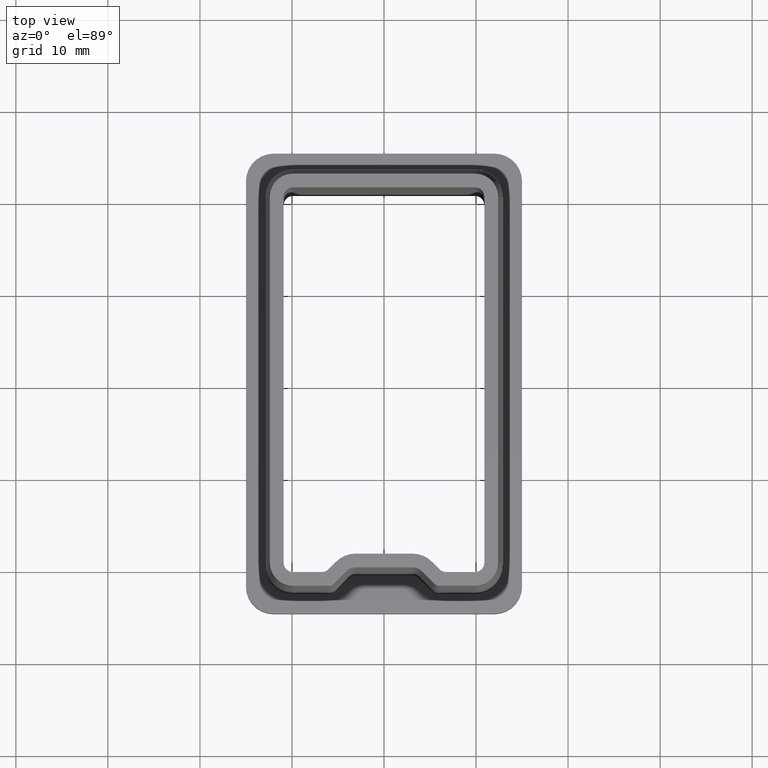
[diagram: clean part render]
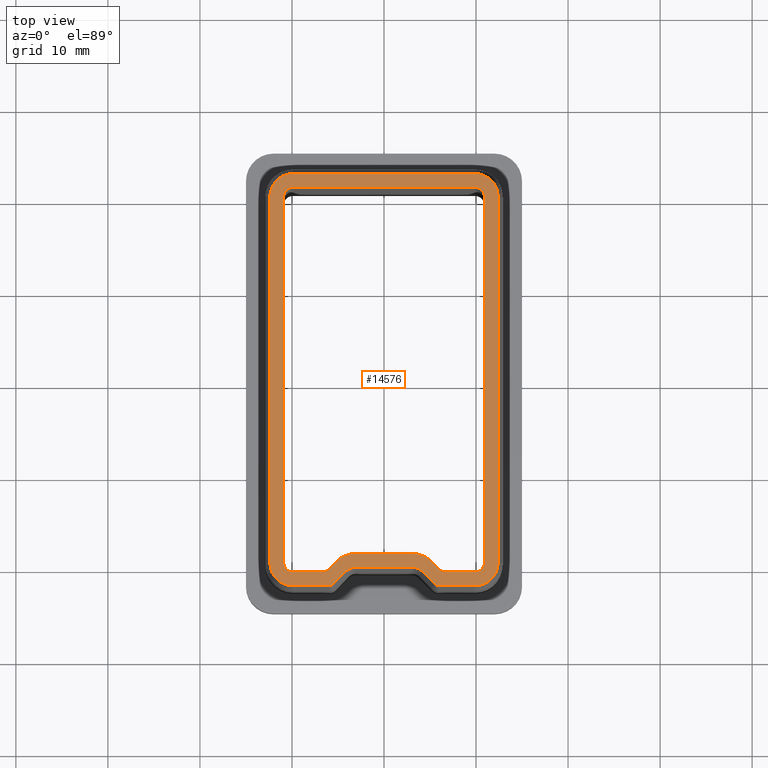
[diagram: same view with one face highlighted and labeled with its STEP entity id]
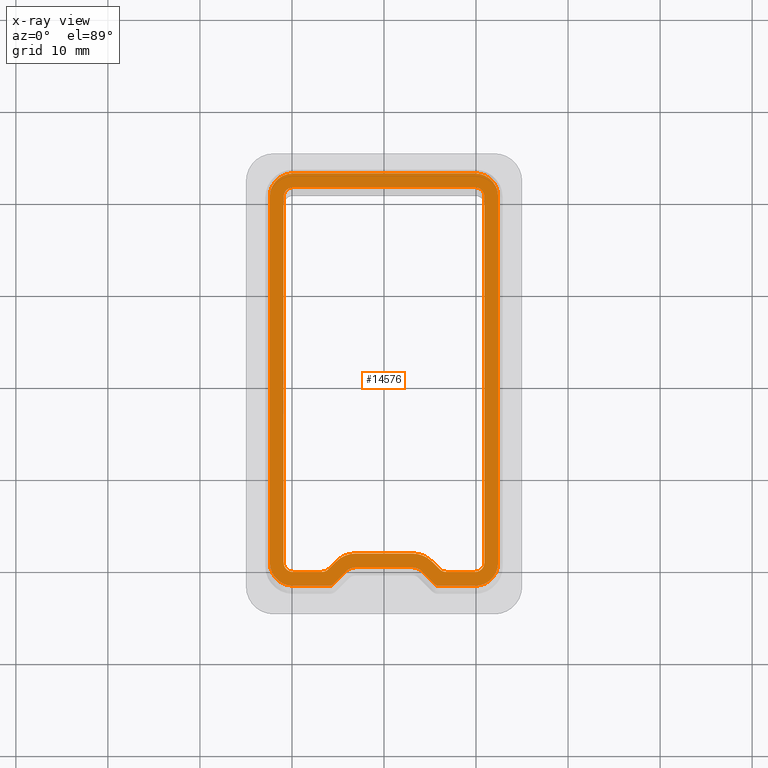
[diagram: x-ray of the same camera — body ghosted, the highlighted face saturated]
A machine part, top view. The second image highlights one B-rep face of the part: STEP entity #14576.
The next image is the same camera in x-ray: the body ghosted, the highlighted face saturated — about 0% of this face is hidden behind the body in this view.
In plain terms, the highlighted planar face has unit normal (0, 0, -1).
Its self-contained STEP definition (entity closure, byte-faithful):
#158 = EDGE_CURVE ( 'NONE', #12493, #13998, #18809, .T. ) ;
#183 = AXIS2_PLACEMENT_3D ( 'NONE', #11297, #15617, #19741 ) ;
#214 = ORIENTED_EDGE ( 'NONE', *, *, #13771, .F. ) ;
#325 = VERTEX_POINT ( 'NONE', #15586 ) ;
#328 = ORIENTED_EDGE ( 'NONE', *, *, #158, .F. ) ;
#495 = AXIS2_PLACEMENT_3D ( 'NONE', #12702, #17212, #16958 ) ;
#691 = CARTESIAN_POINT ( 'NONE',  ( -4.146446609406740300, -20.83933982822019000, 26.99999999999999600 ) ) ;
#701 = CARTESIAN_POINT ( 'NONE',  ( -5.560660171779821900, -22.25355339059327500, 26.99999999999999600 ) ) ;
#717 = LINE ( 'NONE', #5280, #12430 ) ;
#1131 = VECTOR ( 'NONE', #5666, 1000.000000000000000 ) ;
#1184 = CIRCLE ( 'NONE', #4144, 3.000000000000000900 ) ;
#1299 = AXIS2_PLACEMENT_3D ( 'NONE', #10629, #6348, #6155 ) ;
#1342 = CARTESIAN_POINT ( 'NONE',  ( 9.899999999999991500, 19.90000000000000600, 27.00000000000000000 ) ) ;
#1357 = CARTESIAN_POINT ( 'NONE',  ( 9.899999999999991500, 20.90000000000000200, 27.00000000000000000 ) ) ;
#1358 = DIRECTION ( 'NONE',  ( -0.0000000000000000000, -0.0000000000000000000, -1.000000000000000000 ) ) ;
#1419 = LINE ( 'NONE', #3696, #1131 ) ;
#1487 = EDGE_CURVE ( 'NONE', #9550, #11956, #19447, .T. ) ;
#1504 = VERTEX_POINT ( 'NONE', #10001 ) ;
#1533 = CARTESIAN_POINT ( 'NONE',  ( 3.085786437626914000, -20.40000000000000600, 26.99999999999999600 ) ) ;
#1550 = ORIENTED_EDGE ( 'NONE', *, *, #15344, .F. ) ;
#1628 = VERTEX_POINT ( 'NONE', #10887 ) ;
#1669 = AXIS2_PLACEMENT_3D ( 'NONE', #5098, #7208, #26068 ) ;
#1745 = DIRECTION ( 'NONE',  ( -0.0000000000000000000, -0.0000000000000000000, -1.000000000000000000 ) ) ;
#1760 = CARTESIAN_POINT ( 'NONE',  ( -4.146446609406740300, -20.83933982822019000, 26.99999999999999600 ) ) ;
#1804 = AXIS2_PLACEMENT_3D ( 'NONE', #20352, #16338, #1820 ) ;
#1820 = DIRECTION ( 'NONE',  ( -1.000000000000000000, 0.0000000000000000000, 0.0000000000000000000 ) ) ;
#1948 = VERTEX_POINT ( 'NONE', #691 ) ;
#1973 = EDGE_CURVE ( 'NONE', #5263, #15943, #13579, .T. ) ;
#2258 = DIRECTION ( 'NONE',  ( -1.000000000000000000, -8.704548039004547000E-016, 0.0000000000000000000 ) ) ;
#2730 = DIRECTION ( 'NONE',  ( 0.0000000000000000000, 0.0000000000000000000, 1.000000000000000000 ) ) ;
#2733 = EDGE_CURVE ( 'NONE', #8460, #23140, #18067, .T. ) ;
#2933 = LINE ( 'NONE', #3893, #14624 ) ;
#2968 = CARTESIAN_POINT ( 'NONE',  ( 9.899999999999991500, 19.90000000000000600, 26.99999999999999600 ) ) ;
#3186 = VECTOR ( 'NONE', #20471, 1000.000000000000000 ) ;
#3236 = LINE ( 'NONE', #18354, #4830 ) ;
#3282 = VECTOR ( 'NONE', #3553, 1000.000000000000000 ) ;
#3335 = ORIENTED_EDGE ( 'NONE', *, *, #17504, .F. ) ;
#3343 = VERTEX_POINT ( 'NONE', #6074 ) ;
#3369 = DIRECTION ( 'NONE',  ( -1.000000000000000000, 0.0000000000000000000, 0.0000000000000000000 ) ) ;
#3389 = VECTOR ( 'NONE', #7627, 1000.000000000000000 ) ;
#3415 = EDGE_CURVE ( 'NONE', #13916, #5263, #19716, .T. ) ;
#3511 = CARTESIAN_POINT ( 'NONE',  ( 5.914213562373093100, -22.39999999999999900, 26.99999999999999600 ) ) ;
#3540 = CARTESIAN_POINT ( 'NONE',  ( 9.899999999999991500, 22.40000000000000200, 26.99999999999999600 ) ) ;
#3553 = DIRECTION ( 'NONE',  ( 0.7071067811865466800, -0.7071067811865483500, 0.0000000000000000000 ) ) ;
#3604 = EDGE_CURVE ( 'NONE', #7598, #17834, #19051, .T. ) ;
#3649 = DIRECTION ( 'NONE',  ( -4.358601698434188300E-017, 1.000000000000000000, 0.0000000000000000000 ) ) ;
#3696 = CARTESIAN_POINT ( 'NONE',  ( -10.89999999999999300, 19.90000000000000200, 27.00000000000000000 ) ) ;
#3731 = DIRECTION ( 'NONE',  ( -1.000000000000000000, 8.704548039004539200E-016, 0.0000000000000000000 ) ) ;
#3759 = VECTOR ( 'NONE', #9800, 1000.000000000000000 ) ;
#3893 = CARTESIAN_POINT ( 'NONE',  ( -9.899999999999991500, 22.39999999999998800, 26.99999999999999600 ) ) ;
#3909 = ORIENTED_EDGE ( 'NONE', *, *, #22711, .F. ) ;
#3974 = EDGE_CURVE ( 'NONE', #19835, #13417, #12249, .T. ) ;
#4023 = DIRECTION ( 'NONE',  ( -1.000000000000000000, 0.0000000000000000000, 0.0000000000000000000 ) ) ;
#4043 = VERTEX_POINT ( 'NONE', #13921 ) ;
#4144 = AXIS2_PLACEMENT_3D ( 'NONE', #5689, #1358, #24470 ) ;
#4468 = LINE ( 'NONE', #1760, #3186 ) ;
#4634 = EDGE_CURVE ( 'NONE', #13417, #14643, #12879, .T. ) ;
#4712 = EDGE_CURVE ( 'NONE', #22067, #3343, #10609, .T. ) ;
#4830 = VECTOR ( 'NONE', #3731, 1000.000000000000000 ) ;
#4856 = AXIS2_PLACEMENT_3D ( 'NONE', #12579, #1745, #4023 ) ;
#4905 = VECTOR ( 'NONE', #8574, 1000.000000000000000 ) ;
#4909 = CARTESIAN_POINT ( 'NONE',  ( -12.39999999999998400, 19.90000000000000200, 26.99999999999999600 ) ) ;
#4915 = VERTEX_POINT ( 'NONE', #23511 ) ;
#4919 = CARTESIAN_POINT ( 'NONE',  ( -3.085786437626907300, -18.90000000000001300, 27.00000000000000000 ) ) ;
#4943 = ORIENTED_EDGE ( 'NONE', *, *, #15085, .F. ) ;
#5098 = CARTESIAN_POINT ( 'NONE',  ( -3.085786437626913100, -21.90000000000000900, 26.99999999999999600 ) ) ;
#5263 = VERTEX_POINT ( 'NONE', #4909 ) ;
#5280 = CARTESIAN_POINT ( 'NONE',  ( 12.39999999999999000, 19.90000000000000200, 26.99999999999999600 ) ) ;
#5311 = CARTESIAN_POINT ( 'NONE',  ( -6.742640687119283000, -20.90000000000000900, 27.00000000000000000 ) ) ;
#5328 = DIRECTION ( 'NONE',  ( 0.0000000000000000000, 0.0000000000000000000, -1.000000000000000000 ) ) ;
#5463 = DIRECTION ( 'NONE',  ( 1.000000000000000000, 0.0000000000000000000, 0.0000000000000000000 ) ) ;
#5472 = DIRECTION ( 'NONE',  ( -0.0000000000000000000, -0.0000000000000000000, -1.000000000000000000 ) ) ;
#5499 = CARTESIAN_POINT ( 'NONE',  ( -6.328427124746187200, -20.90000000000000900, 27.00000000000000000 ) ) ;
#5666 = DIRECTION ( 'NONE',  ( 4.358601698434188300E-017, -1.000000000000000000, 0.0000000000000000000 ) ) ;
#5687 = VECTOR ( 'NONE', #3649, 1000.000000000000000 ) ;
#5689 = CARTESIAN_POINT ( 'NONE',  ( 3.085786437626913100, -21.90000000000000900, 27.00000000000000000 ) ) ;
#5833 = LINE ( 'NONE', #1533, #22421 ) ;
#6074 = CARTESIAN_POINT ( 'NONE',  ( -5.207106781186555900, -19.77867965644037400, 27.00000000000000000 ) ) ;
#6155 = DIRECTION ( 'NONE',  ( 1.000000000000000000, 0.0000000000000000000, 0.0000000000000000000 ) ) ;
#6248 = ORIENTED_EDGE ( 'NONE', *, *, #10903, .F. ) ;
#6280 = EDGE_CURVE ( 'NONE', #4915, #17909, #17380, .T. ) ;
#6346 = VERTEX_POINT ( 'NONE', #5311 ) ;
#6348 = DIRECTION ( 'NONE',  ( 0.0000000000000000000, 0.0000000000000000000, 1.000000000000000000 ) ) ;
#6457 = ORIENTED_EDGE ( 'NONE', *, *, #6280, .F. ) ;
#6597 = EDGE_CURVE ( 'NONE', #8460, #4043, #11201, .T. ) ;
#6819 = EDGE_LOOP ( 'NONE', ( #23115, #22954, #17577, #22441, #22220, #4943, #19523, #8830, #3335, #6934, #9842, #25354, #3909, #18644, #6457, #10362, #20851 ) ) ;
#6871 = DIRECTION ( 'NONE',  ( -0.0000000000000000000, -0.0000000000000000000, -1.000000000000000000 ) ) ;
#6934 = ORIENTED_EDGE ( 'NONE', *, *, #13648, .F. ) ;
#7031 = EDGE_CURVE ( 'NONE', #16237, #12493, #1419, .T. ) ;
#7088 = AXIS2_PLACEMENT_3D ( 'NONE', #25541, #12878, #23156 ) ;
#7110 = CIRCLE ( 'NONE', #12480, 1.000000000000000900 ) ;
#7208 = DIRECTION ( 'NONE',  ( 0.0000000000000000000, 0.0000000000000000000, 1.000000000000000000 ) ) ;
#7249 = ORIENTED_EDGE ( 'NONE', *, *, #11149, .F. ) ;
#7598 = VERTEX_POINT ( 'NONE', #4919 ) ;
#7627 = DIRECTION ( 'NONE',  ( -1.000000000000000000, -0.0000000000000000000, -0.0000000000000000000 ) ) ;
#7798 = CIRCLE ( 'NONE', #18724, 2.999999999999996900 ) ;
#7808 = ORIENTED_EDGE ( 'NONE', *, *, #19790, .F. ) ;
#7889 = VERTEX_POINT ( 'NONE', #17155 ) ;
#8066 = DIRECTION ( 'NONE',  ( -1.000000000000000000, 0.0000000000000000000, -0.0000000000000000000 ) ) ;
#8097 = CARTESIAN_POINT ( 'NONE',  ( 6.035533905932738600, -20.60710678118655200, 27.00000000000000000 ) ) ;
#8261 = DIRECTION ( 'NONE',  ( 1.000000000000000000, 0.0000000000000000000, 0.0000000000000000000 ) ) ;
#8309 = CARTESIAN_POINT ( 'NONE',  ( -9.899999999999993200, -20.90000000000000200, 27.00000000000000000 ) ) ;
#8358 = DIRECTION ( 'NONE',  ( 1.000000000000000000, 0.0000000000000000000, 0.0000000000000000000 ) ) ;
#8442 = CARTESIAN_POINT ( 'NONE',  ( 9.899999999999991500, -22.39999999999999500, 26.99999999999999600 ) ) ;
#8460 = VERTEX_POINT ( 'NONE', #12045 ) ;
#8574 = DIRECTION ( 'NONE',  ( 1.000000000000000000, -1.942811793645434500E-015, 0.0000000000000000000 ) ) ;
#8628 = CARTESIAN_POINT ( 'NONE',  ( -3.085786437626913100, -21.90000000000000900, 27.00000000000000000 ) ) ;
#8726 = AXIS2_PLACEMENT_3D ( 'NONE', #24253, #5472, #9511 ) ;
#8830 = ORIENTED_EDGE ( 'NONE', *, *, #15870, .F. ) ;
#8897 = CARTESIAN_POINT ( 'NONE',  ( -12.39999999999998300, -19.90000000000000200, 26.99999999999999600 ) ) ;
#9059 = CIRCLE ( 'NONE', #22865, 1.500000000000004000 ) ;
#9108 = EDGE_CURVE ( 'NONE', #17083, #19302, #9059, .T. ) ;
#9260 = CARTESIAN_POINT ( 'NONE',  ( 5.560660171779823600, -22.25355339059327500, 26.99999999999999600 ) ) ;
#9278 = CARTESIAN_POINT ( 'NONE',  ( 3.085786437626913100, -18.90000000000000600, 27.00000000000000000 ) ) ;
#9511 = DIRECTION ( 'NONE',  ( -1.000000000000000000, 0.0000000000000000000, 0.0000000000000000000 ) ) ;
#9540 = DIRECTION ( 'NONE',  ( 1.000000000000000000, 0.0000000000000000000, 0.0000000000000000000 ) ) ;
#9550 = VERTEX_POINT ( 'NONE', #701 ) ;
#9636 = ORIENTED_EDGE ( 'NONE', *, *, #18126, .F. ) ;
#9800 = DIRECTION ( 'NONE',  ( 1.000000000000000000, 5.621657593747403600E-016, 0.0000000000000000000 ) ) ;
#9842 = ORIENTED_EDGE ( 'NONE', *, *, #9108, .F. ) ;
#9857 = CARTESIAN_POINT ( 'NONE',  ( 10.89999999999999300, -19.90000000000000200, 27.00000000000000000 ) ) ;
#9966 = CARTESIAN_POINT ( 'NONE',  ( -3.085786437626907300, -18.90000000000000900, 27.00000000000000000 ) ) ;
#10001 = CARTESIAN_POINT ( 'NONE',  ( -9.899999999999991500, 20.90000000000000200, 27.00000000000000000 ) ) ;
#10047 = ORIENTED_EDGE ( 'NONE', *, *, #18370, .F. ) ;
#10132 = LINE ( 'NONE', #8442, #16608 ) ;
#10204 = CIRCLE ( 'NONE', #183, 0.4999999999999935100 ) ;
#10222 = CIRCLE ( 'NONE', #26844, 1.000000000000000000 ) ;
#10362 = ORIENTED_EDGE ( 'NONE', *, *, #24725, .F. ) ;
#10609 = LINE ( 'NONE', #5499, #16090 ) ;
#10629 = CARTESIAN_POINT ( 'NONE',  ( -9.899999999999991500, -19.90000000000000600, 27.00000000000000000 ) ) ;
#10859 = CARTESIAN_POINT ( 'NONE',  ( -9.899999999999991500, -19.90000000000000600, 26.99999999999999600 ) ) ;
#10864 = VECTOR ( 'NONE', #5463, 1000.000000000000000 ) ;
#10887 = CARTESIAN_POINT ( 'NONE',  ( -9.899999999999995000, -22.39999999999999500, 26.99999999999999600 ) ) ;
#10903 = EDGE_CURVE ( 'NONE', #13998, #6346, #17917, .T. ) ;
#11149 = EDGE_CURVE ( 'NONE', #325, #22515, #25777, .T. ) ;
#11201 = LINE ( 'NONE', #3540, #3389 ) ;
#11286 = CIRCLE ( 'NONE', #495, 1.000000000000000000 ) ;
#11297 = CARTESIAN_POINT ( 'NONE',  ( 5.914213562373092300, -21.90000000000000600, 26.99999999999999600 ) ) ;
#11372 = CARTESIAN_POINT ( 'NONE',  ( -9.899999999999991500, 19.90000000000000200, 27.00000000000000000 ) ) ;
#11460 = CARTESIAN_POINT ( 'NONE',  ( 6.742640687119287400, -19.90000000000000900, 27.00000000000000000 ) ) ;
#11590 = CARTESIAN_POINT ( 'NONE',  ( 5.207106781186558600, -19.77867965644037100, 27.00000000000000000 ) ) ;
#11719 = ORIENTED_EDGE ( 'NONE', *, *, #20114, .T. ) ;
#11919 = ORIENTED_EDGE ( 'NONE', *, *, #4712, .F. ) ;
#11956 = VERTEX_POINT ( 'NONE', #16458 ) ;
#12045 = CARTESIAN_POINT ( 'NONE',  ( 9.899999999999991500, 22.40000000000000200, 26.99999999999999600 ) ) ;
#12181 = PLANE ( 'NONE',  #20444 ) ;
#12249 = LINE ( 'NONE', #9857, #16436 ) ;
#12373 = EDGE_CURVE ( 'NONE', #17909, #20193, #10132, .T. ) ;
#12430 = VECTOR ( 'NONE', #21994, 1000.000000000000000 ) ;
#12480 = AXIS2_PLACEMENT_3D ( 'NONE', #11372, #17876, #9540 ) ;
#12493 = VERTEX_POINT ( 'NONE', #13629 ) ;
#12562 = VERTEX_POINT ( 'NONE', #26219 ) ;
#12579 = CARTESIAN_POINT ( 'NONE',  ( -9.899999999999991500, 19.90000000000000200, 26.99999999999999600 ) ) ;
#12702 = CARTESIAN_POINT ( 'NONE',  ( -6.742640687119280300, -19.90000000000000900, 27.00000000000000000 ) ) ;
#12878 = DIRECTION ( 'NONE',  ( 0.0000000000000000000, 0.0000000000000000000, 1.000000000000000000 ) ) ;
#12879 = CIRCLE ( 'NONE', #21048, 0.9999999999999991100 ) ;
#12960 = CARTESIAN_POINT ( 'NONE',  ( 6.742640687119287400, -20.90000000000000900, 27.00000000000000000 ) ) ;
#13053 = CARTESIAN_POINT ( 'NONE',  ( -3.085786437626910400, -20.40000000000000600, 26.99999999999999600 ) ) ;
#13095 = CARTESIAN_POINT ( 'NONE',  ( 3.085786437626913100, -21.90000000000000900, 26.99999999999999600 ) ) ;
#13417 = VERTEX_POINT ( 'NONE', #19104 ) ;
#13579 = CIRCLE ( 'NONE', #4856, 2.499999999999992000 ) ;
#13629 = CARTESIAN_POINT ( 'NONE',  ( -10.89999999999999100, -19.90000000000000600, 27.00000000000000000 ) ) ;
#13648 = EDGE_CURVE ( 'NONE', #19302, #21462, #5833, .T. ) ;
#13771 = EDGE_CURVE ( 'NONE', #3343, #7598, #7798, .T. ) ;
#13867 = CIRCLE ( 'NONE', #1669, 1.500000000000004900 ) ;
#13916 = VERTEX_POINT ( 'NONE', #8897 ) ;
#13921 = CARTESIAN_POINT ( 'NONE',  ( -3.469446951953612600E-015, 22.39999999999999900, 27.00000000000000000 ) ) ;
#13998 = VERTEX_POINT ( 'NONE', #19637 ) ;
#14432 = VECTOR ( 'NONE', #3369, 1000.000000000000000 ) ;
#14576 = ADVANCED_FACE ( 'NONE', ( #22728, #17849 ), #12181, .F. ) ;
#14624 = VECTOR ( 'NONE', #8261, 1000.000000000000000 ) ;
#14635 = ORIENTED_EDGE ( 'NONE', *, *, #7031, .F. ) ;
#14643 = VERTEX_POINT ( 'NONE', #20605 ) ;
#14914 = DIRECTION ( 'NONE',  ( -1.000000000000000000, 0.0000000000000000000, 0.0000000000000000000 ) ) ;
#15085 = EDGE_CURVE ( 'NONE', #11956, #1628, #3236, .T. ) ;
#15097 = DIRECTION ( 'NONE',  ( -0.0000000000000000000, -0.0000000000000000000, -1.000000000000000000 ) ) ;
#15344 = EDGE_CURVE ( 'NONE', #1504, #16237, #7110, .T. ) ;
#15507 = DIRECTION ( 'NONE',  ( 0.7071067811865466800, 0.7071067811865483500, 0.0000000000000000000 ) ) ;
#15586 = CARTESIAN_POINT ( 'NONE',  ( 5.207106781186559500, -19.77867965644037400, 27.00000000000000000 ) ) ;
#15617 = DIRECTION ( 'NONE',  ( -0.0000000000000000000, -0.0000000000000000000, -1.000000000000000000 ) ) ;
#15685 = ORIENTED_EDGE ( 'NONE', *, *, #4634, .F. ) ;
#15760 = DIRECTION ( 'NONE',  ( -1.000000000000000000, 0.0000000000000000000, 0.0000000000000000000 ) ) ;
#15870 = EDGE_CURVE ( 'NONE', #1948, #9550, #4468, .T. ) ;
#15904 = VECTOR ( 'NONE', #23439, 1000.000000000000000 ) ;
#15943 = VERTEX_POINT ( 'NONE', #22669 ) ;
#15991 = EDGE_LOOP ( 'NONE', ( #7249, #10047, #18707, #214, #11919, #24705, #6248, #328, #14635, #1550, #7808, #15685, #17538, #9636, #24181, #11719 ) ) ;
#16032 = CARTESIAN_POINT ( 'NONE',  ( 9.899999999999991500, -22.39999999999999500, 26.99999999999999600 ) ) ;
#16068 = EDGE_CURVE ( 'NONE', #1628, #13916, #20387, .T. ) ;
#16090 = VECTOR ( 'NONE', #15507, 1000.000000000000100 ) ;
#16237 = VERTEX_POINT ( 'NONE', #17566 ) ;
#16338 = DIRECTION ( 'NONE',  ( -0.0000000000000000000, -0.0000000000000000000, -1.000000000000000000 ) ) ;
#16436 = VECTOR ( 'NONE', #26342, 1000.000000000000000 ) ;
#16458 = CARTESIAN_POINT ( 'NONE',  ( -5.914213562373092300, -22.39999999999999900, 26.99999999999999600 ) ) ;
#16608 = VECTOR ( 'NONE', #2258, 1000.000000000000000 ) ;
#16958 = DIRECTION ( 'NONE',  ( -1.000000000000000000, 0.0000000000000000000, 0.0000000000000000000 ) ) ;
#17083 = VERTEX_POINT ( 'NONE', #20762 ) ;
#17155 = CARTESIAN_POINT ( 'NONE',  ( 5.560660171779823600, -22.25355339059327500, 26.99999999999999600 ) ) ;
#17212 = DIRECTION ( 'NONE',  ( 0.0000000000000000000, 0.0000000000000000000, -1.000000000000000000 ) ) ;
#17354 = DIRECTION ( 'NONE',  ( 1.000000000000000000, 0.0000000000000000000, 0.0000000000000000000 ) ) ;
#17380 = CIRCLE ( 'NONE', #8726, 2.499999999999998700 ) ;
#17504 = EDGE_CURVE ( 'NONE', #21462, #1948, #13867, .T. ) ;
#17538 = ORIENTED_EDGE ( 'NONE', *, *, #3974, .F. ) ;
#17566 = CARTESIAN_POINT ( 'NONE',  ( -10.89999999999999300, 19.90000000000000200, 27.00000000000000000 ) ) ;
#17577 = ORIENTED_EDGE ( 'NONE', *, *, #1973, .F. ) ;
#17711 = DIRECTION ( 'NONE',  ( 1.000000000000000000, 0.0000000000000000000, 0.0000000000000000000 ) ) ;
#17834 = VERTEX_POINT ( 'NONE', #9278 ) ;
#17849 = FACE_BOUND ( 'NONE', #15991, .T. ) ;
#17876 = DIRECTION ( 'NONE',  ( 0.0000000000000000000, 0.0000000000000000000, 1.000000000000000000 ) ) ;
#17909 = VERTEX_POINT ( 'NONE', #16032 ) ;
#17917 = LINE ( 'NONE', #8309, #4905 ) ;
#18038 = CARTESIAN_POINT ( 'NONE',  ( 12.39999999999999000, 19.90000000000000200, 26.99999999999999600 ) ) ;
#18067 = CIRCLE ( 'NONE', #24404, 2.499999999999998700 ) ;
#18092 = EDGE_CURVE ( 'NONE', #22067, #6346, #11286, .T. ) ;
#18126 = EDGE_CURVE ( 'NONE', #12562, #19835, #21970, .T. ) ;
#18354 = CARTESIAN_POINT ( 'NONE',  ( -5.914213562373092300, -22.39999999999999900, 26.99999999999999600 ) ) ;
#18370 = EDGE_CURVE ( 'NONE', #17834, #325, #1184, .T. ) ;
#18644 = ORIENTED_EDGE ( 'NONE', *, *, #12373, .F. ) ;
#18707 = ORIENTED_EDGE ( 'NONE', *, *, #3604, .F. ) ;
#18717 = DIRECTION ( 'NONE',  ( 0.0000000000000000000, 0.0000000000000000000, -1.000000000000000000 ) ) ;
#18724 = AXIS2_PLACEMENT_3D ( 'NONE', #8628, #23086, #8358 ) ;
#18809 = CIRCLE ( 'NONE', #1299, 0.9999999999999974500 ) ;
#19051 = LINE ( 'NONE', #9966, #3759 ) ;
#19104 = CARTESIAN_POINT ( 'NONE',  ( 10.89999999999999300, 19.90000000000000600, 27.00000000000000000 ) ) ;
#19302 = VERTEX_POINT ( 'NONE', #24241 ) ;
#19447 = CIRCLE ( 'NONE', #1804, 0.4999999999999943900 ) ;
#19523 = ORIENTED_EDGE ( 'NONE', *, *, #1487, .F. ) ;
#19637 = CARTESIAN_POINT ( 'NONE',  ( -9.899999999999993200, -20.90000000000000200, 27.00000000000000000 ) ) ;
#19716 = LINE ( 'NONE', #22716, #5687 ) ;
#19741 = DIRECTION ( 'NONE',  ( -1.000000000000000000, 0.0000000000000000000, 0.0000000000000000000 ) ) ;
#19790 = EDGE_CURVE ( 'NONE', #14643, #1504, #20298, .T. ) ;
#19835 = VERTEX_POINT ( 'NONE', #20601 ) ;
#19942 = CARTESIAN_POINT ( 'NONE',  ( 6.328427124746193400, -20.90000000000000900, 27.00000000000000000 ) ) ;
#19964 = LINE ( 'NONE', #19942, #10864 ) ;
#19978 = DIRECTION ( 'NONE',  ( 0.0000000000000000000, 0.0000000000000000000, 1.000000000000000000 ) ) ;
#20114 = EDGE_CURVE ( 'NONE', #21400, #22515, #10222, .T. ) ;
#20193 = VERTEX_POINT ( 'NONE', #3511 ) ;
#20298 = LINE ( 'NONE', #1357, #14432 ) ;
#20352 = CARTESIAN_POINT ( 'NONE',  ( -5.914213562373092300, -21.90000000000000600, 26.99999999999999600 ) ) ;
#20387 = CIRCLE ( 'NONE', #24357, 2.499999999999992000 ) ;
#20444 = AXIS2_PLACEMENT_3D ( 'NONE', #22902, #18717, #8066 ) ;
#20471 = DIRECTION ( 'NONE',  ( -0.7071067811865462400, -0.7071067811865489100, 0.0000000000000000000 ) ) ;
#20481 = LINE ( 'NONE', #9260, #15904 ) ;
#20601 = CARTESIAN_POINT ( 'NONE',  ( 10.89999999999999700, -19.90000000000000200, 27.00000000000000000 ) ) ;
#20605 = CARTESIAN_POINT ( 'NONE',  ( 9.899999999999991500, 20.90000000000000200, 27.00000000000000000 ) ) ;
#20762 = CARTESIAN_POINT ( 'NONE',  ( 4.146446609406741100, -20.83933982822019000, 26.99999999999999600 ) ) ;
#20851 = ORIENTED_EDGE ( 'NONE', *, *, #2733, .F. ) ;
#21048 = AXIS2_PLACEMENT_3D ( 'NONE', #1342, #19978, #17711 ) ;
#21400 = VERTEX_POINT ( 'NONE', #12960 ) ;
#21462 = VERTEX_POINT ( 'NONE', #13053 ) ;
#21970 = CIRCLE ( 'NONE', #7088, 1.000000000000004400 ) ;
#21994 = DIRECTION ( 'NONE',  ( 4.358601698434188300E-017, -1.000000000000000000, 0.0000000000000000000 ) ) ;
#22067 = VERTEX_POINT ( 'NONE', #24302 ) ;
#22220 = ORIENTED_EDGE ( 'NONE', *, *, #16068, .F. ) ;
#22329 = EDGE_CURVE ( 'NONE', #21400, #12562, #19964, .T. ) ;
#22421 = VECTOR ( 'NONE', #22713, 1000.000000000000000 ) ;
#22441 = ORIENTED_EDGE ( 'NONE', *, *, #3415, .F. ) ;
#22515 = VERTEX_POINT ( 'NONE', #8097 ) ;
#22669 = CARTESIAN_POINT ( 'NONE',  ( -9.899999999999991500, 22.39999999999998800, 26.99999999999999600 ) ) ;
#22711 = EDGE_CURVE ( 'NONE', #20193, #7889, #10204, .T. ) ;
#22713 = DIRECTION ( 'NONE',  ( -1.000000000000000000, 0.0000000000000000000, 0.0000000000000000000 ) ) ;
#22716 = CARTESIAN_POINT ( 'NONE',  ( -12.39999999999998300, -19.90000000000000200, 26.99999999999999600 ) ) ;
#22728 = FACE_OUTER_BOUND ( 'NONE', #6819, .T. ) ;
#22865 = AXIS2_PLACEMENT_3D ( 'NONE', #13095, #2730, #17354 ) ;
#22902 = CARTESIAN_POINT ( 'NONE',  ( 0.0000000000000000000, 0.0000000000000000000, 27.00000000000000000 ) ) ;
#22954 = ORIENTED_EDGE ( 'NONE', *, *, #26383, .F. ) ;
#23086 = DIRECTION ( 'NONE',  ( -0.0000000000000000000, -0.0000000000000000000, -1.000000000000000000 ) ) ;
#23115 = ORIENTED_EDGE ( 'NONE', *, *, #6597, .T. ) ;
#23140 = VERTEX_POINT ( 'NONE', #18038 ) ;
#23156 = DIRECTION ( 'NONE',  ( 1.000000000000000000, 0.0000000000000000000, 0.0000000000000000000 ) ) ;
#23439 = DIRECTION ( 'NONE',  ( -0.7071067811865464600, 0.7071067811865486800, 0.0000000000000000000 ) ) ;
#23511 = CARTESIAN_POINT ( 'NONE',  ( 12.39999999999999100, -19.90000000000000200, 26.99999999999999600 ) ) ;
#23812 = DIRECTION ( 'NONE',  ( -1.000000000000000000, 0.0000000000000000000, 0.0000000000000000000 ) ) ;
#24181 = ORIENTED_EDGE ( 'NONE', *, *, #22329, .F. ) ;
#24241 = CARTESIAN_POINT ( 'NONE',  ( 3.085786437626914000, -20.40000000000000600, 26.99999999999999600 ) ) ;
#24253 = CARTESIAN_POINT ( 'NONE',  ( 9.899999999999991500, -19.90000000000000200, 26.99999999999999600 ) ) ;
#24302 = CARTESIAN_POINT ( 'NONE',  ( -6.035533905932732400, -20.60710678118655200, 27.00000000000000000 ) ) ;
#24357 = AXIS2_PLACEMENT_3D ( 'NONE', #10859, #15097, #14914 ) ;
#24404 = AXIS2_PLACEMENT_3D ( 'NONE', #2968, #6871, #23812 ) ;
#24470 = DIRECTION ( 'NONE',  ( 1.000000000000000000, 0.0000000000000000000, 0.0000000000000000000 ) ) ;
#24705 = ORIENTED_EDGE ( 'NONE', *, *, #18092, .T. ) ;
#24725 = EDGE_CURVE ( 'NONE', #23140, #4915, #717, .T. ) ;
#25354 = ORIENTED_EDGE ( 'NONE', *, *, #26580, .F. ) ;
#25541 = CARTESIAN_POINT ( 'NONE',  ( 9.899999999999991500, -19.90000000000000200, 27.00000000000000000 ) ) ;
#25777 = LINE ( 'NONE', #11590, #3282 ) ;
#26068 = DIRECTION ( 'NONE',  ( 1.000000000000000000, 0.0000000000000000000, 0.0000000000000000000 ) ) ;
#26219 = CARTESIAN_POINT ( 'NONE',  ( 9.899999999999993200, -20.90000000000000900, 27.00000000000000000 ) ) ;
#26342 = DIRECTION ( 'NONE',  ( 0.0000000000000000000, 1.000000000000000000, 0.0000000000000000000 ) ) ;
#26383 = EDGE_CURVE ( 'NONE', #15943, #4043, #2933, .T. ) ;
#26580 = EDGE_CURVE ( 'NONE', #7889, #17083, #20481, .T. ) ;
#26844 = AXIS2_PLACEMENT_3D ( 'NONE', #11460, #5328, #15760 ) ;